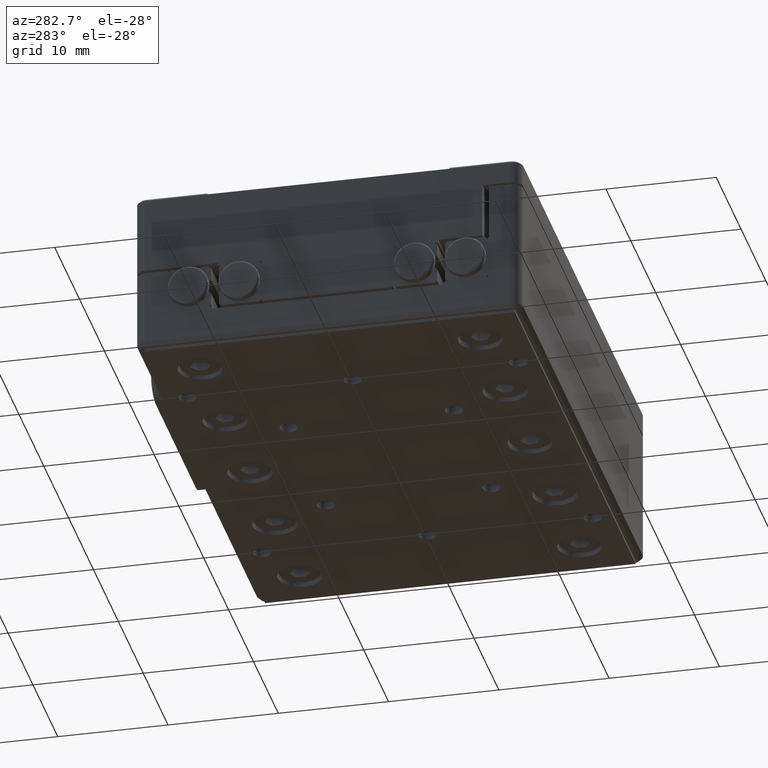
[diagram: clean part render]
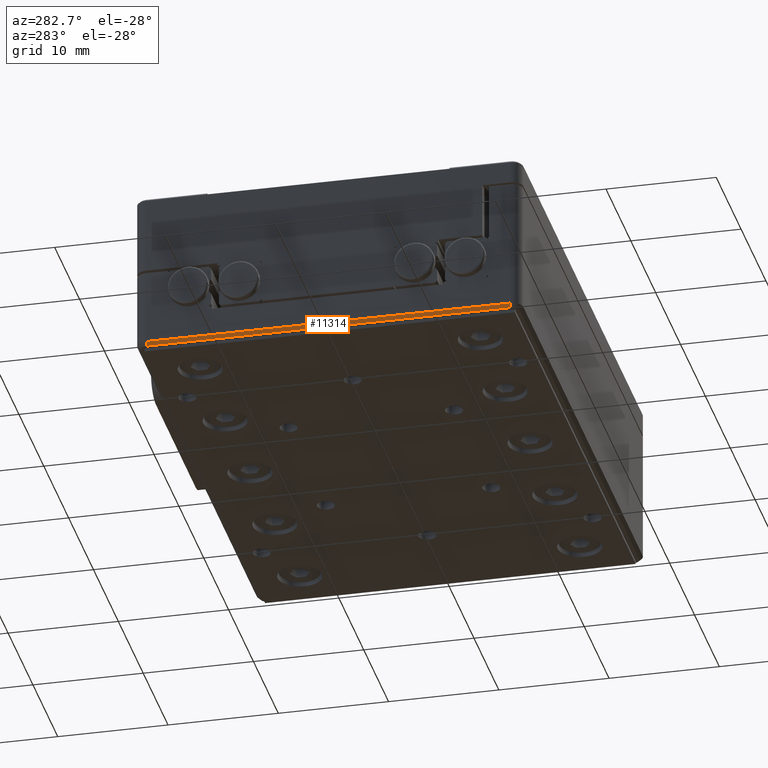
[diagram: same view with one face highlighted and labeled with its STEP entity id]
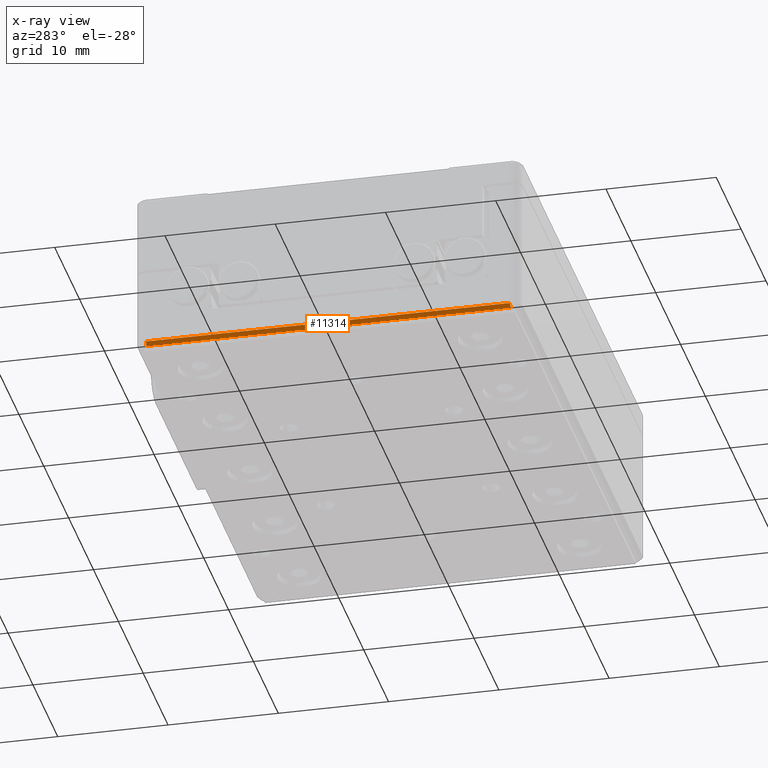
[diagram: x-ray of the same camera — body ghosted, the highlighted face saturated]
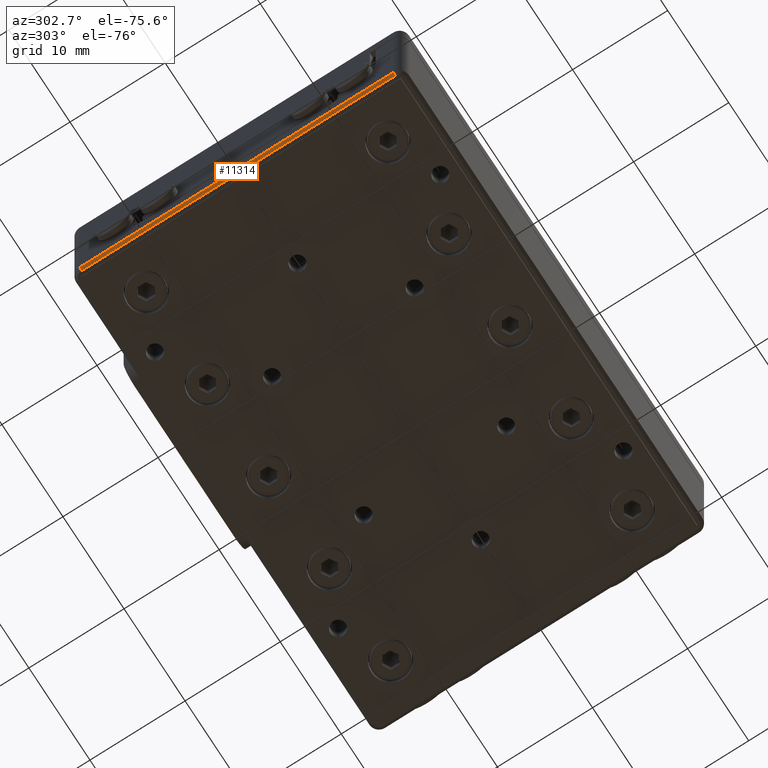
[diagram: same view with one face highlighted and labeled with its STEP entity id]
A machine part, auxiliary view. The second image highlights one B-rep face of the part: STEP entity #11314.
The next image is the same camera in x-ray: the body ghosted, the highlighted face saturated — about 0% of this face is hidden behind the body in this view.
A second angle (auxiliary view) of the same face is appended — the face is thin or edge-on in the first view.
In plain terms, the highlighted planar face has unit normal (-0.7071, 0, -0.7071).
Its self-contained STEP definition (entity closure, byte-faithful):
#138 = CARTESIAN_POINT ( 'NONE',  ( -27.07789203084834995, 2.899999999999999911, 2.684151713478734725E-15 ) ) ;
#466 = PLANE ( 'NONE',  #11681 ) ;
#978 = EDGE_CURVE ( 'NONE', #12160, #10332, #12539, .T. ) ;
#2038 = CARTESIAN_POINT ( 'NONE',  ( -27.37789203084835421, 2.600000000000000089, -12.81748071979434123 ) ) ;
#2830 = DIRECTION ( 'NONE',  ( 9.912705577010319386E-17, 0.000000000000000000, 1.000000000000000000 ) ) ;
#2941 = VERTEX_POINT ( 'NONE', #5623 ) ;
#2989 = VECTOR ( 'NONE', #12470, 1000.000000000000000 ) ;
#3826 = VECTOR ( 'NONE', #8866, 1000.000000000000000 ) ;
#4484 = LINE ( 'NONE', #7656, #3826 ) ;
#4906 = ORIENTED_EDGE ( 'NONE', *, *, #11100, .F. ) ;
#5262 = ORIENTED_EDGE ( 'NONE', *, *, #978, .F. ) ;
#5272 = DIRECTION ( 'NONE',  ( -0.7071067811865540120, 0.7071067811865410224, 7.009341333409770038E-17 ) ) ;
#5443 = DIRECTION ( 'NONE',  ( -0.7071067811865431318, -0.7071067811865520136, 0.000000000000000000 ) ) ;
#5623 = CARTESIAN_POINT ( 'NONE',  ( -27.07789203084834995, 2.899999999999999911, 20.18251928020564989 ) ) ;
#6471 = EDGE_CURVE ( 'NONE', #8726, #10332, #4484, .T. ) ;
#6485 = CARTESIAN_POINT ( 'NONE',  ( -27.07789203084834995, 2.899999999999999911, 20.18251928020564989 ) ) ;
#6778 = CARTESIAN_POINT ( 'NONE',  ( -27.07789203084834995, 2.899999999999999911, 20.18251928020564989 ) ) ;
#6918 = LINE ( 'NONE', #6778, #12582 ) ;
#7656 = CARTESIAN_POINT ( 'NONE',  ( -27.07789203084834995, 2.899999999999999911, -12.81748071979434123 ) ) ;
#8153 = EDGE_LOOP ( 'NONE', ( #9909, #5262, #4906, #8367 ) ) ;
#8367 = ORIENTED_EDGE ( 'NONE', *, *, #12152, .F. ) ;
#8654 = CARTESIAN_POINT ( 'NONE',  ( -27.07789203084834995, 2.899999999999999911, -12.81748071979434123 ) ) ;
#8726 = VERTEX_POINT ( 'NONE', #8654 ) ;
#8866 = DIRECTION ( 'NONE',  ( -0.7071067811865470176, -0.7071067811865480168, 0.000000000000000000 ) ) ;
#9233 = VECTOR ( 'NONE', #5443, 999.9999999999998863 ) ;
#9525 = DIRECTION ( 'NONE',  ( 9.912705577010319386E-17, 0.000000000000000000, 1.000000000000000000 ) ) ;
#9663 = FACE_OUTER_BOUND ( 'NONE', #8153, .T. ) ;
#9909 = ORIENTED_EDGE ( 'NONE', *, *, #6471, .T. ) ;
#10332 = VERTEX_POINT ( 'NONE', #12369 ) ;
#11100 = EDGE_CURVE ( 'NONE', #2941, #12160, #12756, .T. ) ;
#11314 = ADVANCED_FACE ( 'NONE', ( #9663 ), #466, .T. ) ;
#11681 = AXIS2_PLACEMENT_3D ( 'NONE', #138, #5272, #9525 ) ;
#12152 = EDGE_CURVE ( 'NONE', #8726, #2941, #6918, .T. ) ;
#12159 = CARTESIAN_POINT ( 'NONE',  ( -27.37789203084835421, 2.600000000000000089, 20.18251928020564989 ) ) ;
#12160 = VERTEX_POINT ( 'NONE', #12159 ) ;
#12369 = CARTESIAN_POINT ( 'NONE',  ( -27.37789203084835421, 2.600000000000000089, -12.81748071979434123 ) ) ;
#12470 = DIRECTION ( 'NONE',  ( -9.912705577010319386E-17, 0.000000000000000000, -1.000000000000000000 ) ) ;
#12539 = LINE ( 'NONE', #2038, #2989 ) ;
#12582 = VECTOR ( 'NONE', #2830, 1000.000000000000000 ) ;
#12756 = LINE ( 'NONE', #6485, #9233 ) ;